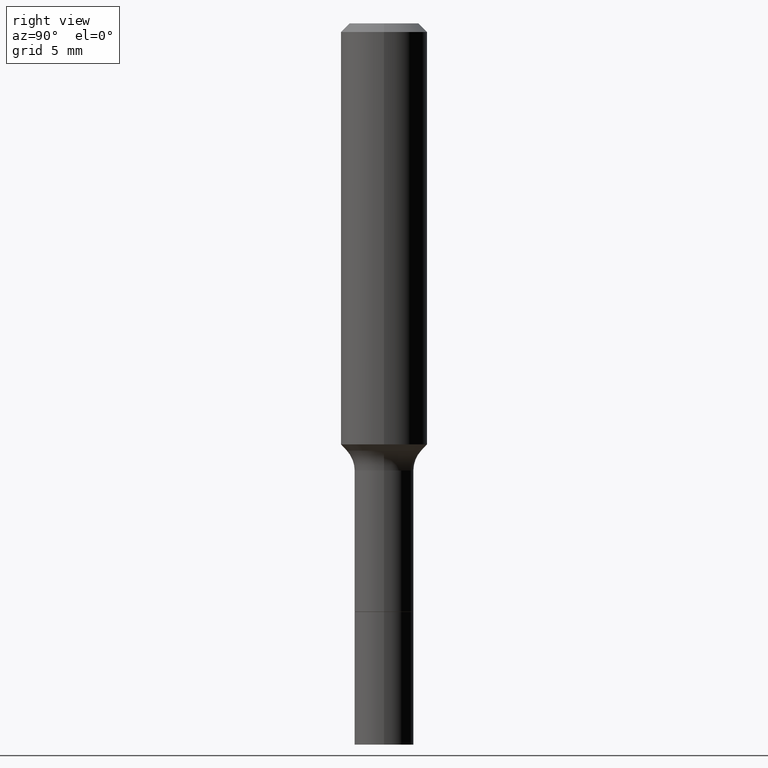
[diagram: clean part render]
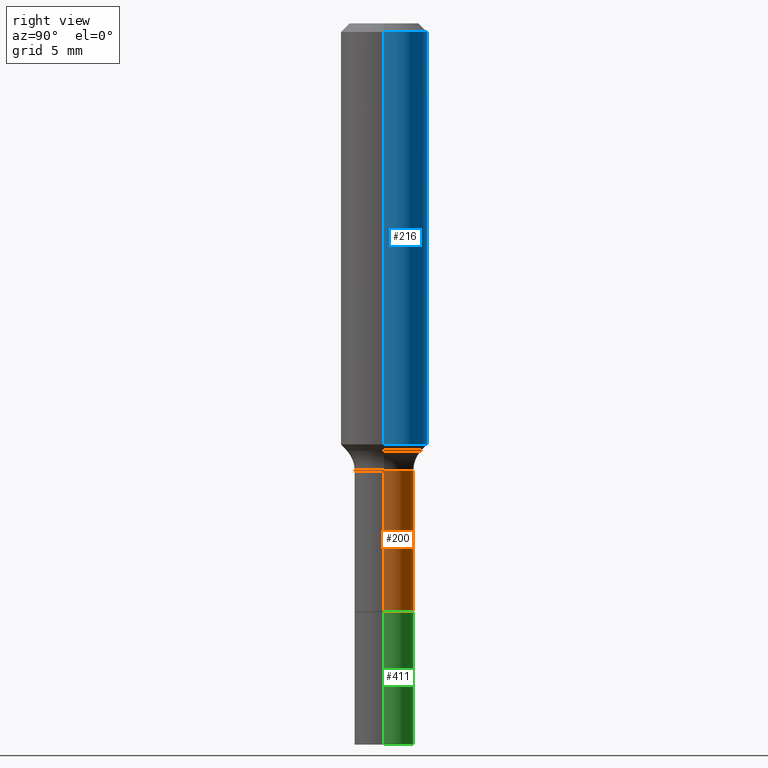
[diagram: same view with three faces highlighted in distinct colors, each labeled with its STEP entity id]
A machine part, right view with three faces highlighted in distinct colors.
Their STEP definitions:

[orange] entity #200 — the highlighted cylindrical surface (edge-blend (fillet) strip) has radius 2.0498 mm, axis along (-0, 0, 1).
#1 = VERTEX_POINT ( 'NONE', #60 ) ;
#11 = EDGE_CURVE ( 'NONE', #90, #1, #235, .T. ) ;
#26 = LINE ( 'NONE', #228, #67 ) ;
#54 = AXIS2_PLACEMENT_3D ( 'NONE', #124, #207, #278 ) ;
#60 = CARTESIAN_POINT ( 'NONE',  ( -0.08069999999999993845, -4.360928014361675851E-15, -1.220499999999999918 ) ) ;
#67 = VECTOR ( 'NONE', #380, 39.37007874015748143 ) ;
#90 = VERTEX_POINT ( 'NONE', #475 ) ;
#97 = DIRECTION ( 'NONE',  ( -2.445468806185136597E-29, 3.491481338843145583E-15, 1.000000000000000000 ) ) ;
#103 = CARTESIAN_POINT ( 'NONE',  ( -0.08069999999999999396, -4.360928014361675851E-15, -1.606000000000000094 ) ) ;
#105 = DIRECTION ( 'NONE',  ( -2.445468806185136877E-29, 3.491481338843145188E-15, 1.000000000000000000 ) ) ;
#124 = CARTESIAN_POINT ( 'NONE',  ( 3.927422902733329482E-29, -5.607319030182091922E-15, -1.606000000000000094 ) ) ;
#128 = VECTOR ( 'NONE', #105, 39.37007874015748143 ) ;
#129 = EDGE_LOOP ( 'NONE', ( #404, #372, #497, #328 ) ) ;
#137 = CARTESIAN_POINT ( 'NONE',  ( 2.984694677948959472E-29, -4.261352974058059028E-15, -1.220499999999999918 ) ) ;
#179 = DIRECTION ( 'NONE',  ( 1.000000000000000000, -6.982962677686265133E-15, 4.876176775795935232E-29 ) ) ;
#200 = ADVANCED_FACE ( 'NONE', ( #247 ), #481, .T. ) ;
#207 = DIRECTION ( 'NONE',  ( -2.445468806185136597E-29, 3.491481338843145583E-15, 1.000000000000000000 ) ) ;
#220 = VERTEX_POINT ( 'NONE', #518 ) ;
#228 = CARTESIAN_POINT ( 'NONE',  ( -0.08069999999999998008, 5.734079877584007085E-16, -3.969580617835708043E-30 ) ) ;
#235 = CIRCLE ( 'NONE', #259, 0.08069999999999993845 ) ;
#247 = FACE_OUTER_BOUND ( 'NONE', #129, .T. ) ;
#258 = DIRECTION ( 'NONE',  ( -2.445468806185136597E-29, 3.491481338843145583E-15, 1.000000000000000000 ) ) ;
#259 = AXIS2_PLACEMENT_3D ( 'NONE', #137, #258, #268 ) ;
#268 = DIRECTION ( 'NONE',  ( 1.000000000000000000, -6.982962677686265133E-15, 0.000000000000000000 ) ) ;
#278 = DIRECTION ( 'NONE',  ( 1.000000000000000000, -6.982962677686260400E-15, 0.000000000000000000 ) ) ;
#283 = CIRCLE ( 'NONE', #54, 0.08069999999999999396 ) ;
#292 = EDGE_CURVE ( 'NONE', #365, #1, #26, .T. ) ;
#315 = AXIS2_PLACEMENT_3D ( 'NONE', #398, #97, #179 ) ;
#328 = ORIENTED_EDGE ( 'NONE', *, *, #366, .F. ) ;
#351 = CARTESIAN_POINT ( 'NONE',  ( 0.08069999999999998008, -5.635250880892814680E-16, 3.935074658067318957E-30 ) ) ;
#365 = VERTEX_POINT ( 'NONE', #103 ) ;
#366 = EDGE_CURVE ( 'NONE', #220, #90, #462, .T. ) ;
#372 = ORIENTED_EDGE ( 'NONE', *, *, #292, .T. ) ;
#380 = DIRECTION ( 'NONE',  ( -2.445468806185136877E-29, 3.491481338843145188E-15, 1.000000000000000000 ) ) ;
#398 = CARTESIAN_POINT ( 'NONE',  ( 0.000000000000000000, 0.000000000000000000, 0.000000000000000000 ) ) ;
#404 = ORIENTED_EDGE ( 'NONE', *, *, #437, .T. ) ;
#437 = EDGE_CURVE ( 'NONE', #220, #365, #283, .T. ) ;
#462 = LINE ( 'NONE', #351, #128 ) ;
#475 = CARTESIAN_POINT ( 'NONE',  ( 0.08069999999999993845, -4.824878062147340101E-15, -1.220499999999999918 ) ) ;
#481 = CYLINDRICAL_SURFACE ( 'NONE', #315, 0.08069999999999998008 ) ;
#497 = ORIENTED_EDGE ( 'NONE', *, *, #11, .F. ) ;
#518 = CARTESIAN_POINT ( 'NONE',  ( 0.08069999999999999396, -6.170844118271372995E-15, -1.606000000000000094 ) ) ;

[blue] entity #216 — the highlighted cylindrical surface (partial cylindrical patch) has radius 2.9997 mm, axis along (-0, 0, 1).
#2 = VECTOR ( 'NONE', #232, 39.37007874015748143 ) ;
#23 = CARTESIAN_POINT ( 'NONE',  ( 0.1181000000000001354, -4.835982970616103918E-15, -1.148880572195881467 ) ) ;
#30 = EDGE_CURVE ( 'NONE', #293, #127, #65, .T. ) ;
#37 = DIRECTION ( 'NONE',  ( -2.445468806185136877E-29, 3.491481338843145188E-15, 1.000000000000000000 ) ) ;
#40 = CARTESIAN_POINT ( 'NONE',  ( -0.1180999999999999966, -1.207730962869736176E-15, -0.02362000000000014435 ) ) ;
#65 = LINE ( 'NONE', #384, #2 ) ;
#83 = CARTESIAN_POINT ( 'NONE',  ( 0.000000000000000000, 0.000000000000000000, 0.000000000000000000 ) ) ;
#86 = DIRECTION ( 'NONE',  ( -2.445468806185136597E-29, 3.491481338843145583E-15, 1.000000000000000000 ) ) ;
#127 = VERTEX_POINT ( 'NONE', #135 ) ;
#135 = CARTESIAN_POINT ( 'NONE',  ( 0.1180999999999999966, -9.071566814582237199E-16, -0.02362000000000014435 ) ) ;
#141 = CARTESIAN_POINT ( 'NONE',  ( 5.776197320209328408E-31, -8.246878922347560526E-17, -0.02362000000000014435 ) ) ;
#161 = EDGE_CURVE ( 'NONE', #293, #447, #206, .T. ) ;
#176 = EDGE_LOOP ( 'NONE', ( #517, #489, #177, #421 ) ) ;
#177 = ORIENTED_EDGE ( 'NONE', *, *, #311, .F. ) ;
#178 = AXIS2_PLACEMENT_3D ( 'NONE', #141, #348, #503 ) ;
#206 = CIRCLE ( 'NONE', #248, 0.1181000000000001354 ) ;
#214 = VECTOR ( 'NONE', #37, 39.37007874015748143 ) ;
#216 = ADVANCED_FACE ( 'NONE', ( #294 ), #440, .T. ) ;
#232 = DIRECTION ( 'NONE',  ( -2.445468806185136877E-29, 3.491481338843145188E-15, 1.000000000000000000 ) ) ;
#241 = CARTESIAN_POINT ( 'NONE',  ( 2.809551601337159132E-29, -4.011295078381354866E-15, -1.148880572195881467 ) ) ;
#244 = DIRECTION ( 'NONE',  ( 1.000000000000000000, -6.982962677686266711E-15, 4.876176775795936353E-29 ) ) ;
#248 = AXIS2_PLACEMENT_3D ( 'NONE', #241, #86, #286 ) ;
#286 = DIRECTION ( 'NONE',  ( 1.000000000000000000, -6.982962677686265133E-15, 0.000000000000000000 ) ) ;
#293 = VERTEX_POINT ( 'NONE', #23 ) ;
#294 = FACE_OUTER_BOUND ( 'NONE', #176, .T. ) ;
#311 = EDGE_CURVE ( 'NONE', #127, #461, #322, .T. ) ;
#318 = CARTESIAN_POINT ( 'NONE',  ( -0.1181000000000000660, 8.391509709326787887E-16, -5.809262341591047287E-30 ) ) ;
#322 = CIRCLE ( 'NONE', #178, 0.1180999999999999966 ) ;
#348 = DIRECTION ( 'NONE',  ( -2.445468806185136597E-29, 3.491481338843145583E-15, 1.000000000000000000 ) ) ;
#367 = DIRECTION ( 'NONE',  ( -2.445468806185136597E-29, 3.491481338843145583E-15, 1.000000000000000000 ) ) ;
#384 = CARTESIAN_POINT ( 'NONE',  ( 0.1181000000000000660, -8.246878922347485584E-16, 5.758764772215003944E-30 ) ) ;
#421 = ORIENTED_EDGE ( 'NONE', *, *, #30, .F. ) ;
#440 = CYLINDRICAL_SURFACE ( 'NONE', #470, 0.1181000000000000660 ) ;
#447 = VERTEX_POINT ( 'NONE', #476 ) ;
#461 = VERTEX_POINT ( 'NONE', #40 ) ;
#470 = AXIS2_PLACEMENT_3D ( 'NONE', #83, #367, #244 ) ;
#476 = CARTESIAN_POINT ( 'NONE',  ( -0.1181000000000001354, -3.172144107448675880E-15, -1.148880572195881467 ) ) ;
#489 = ORIENTED_EDGE ( 'NONE', *, *, #491, .T. ) ;
#491 = EDGE_CURVE ( 'NONE', #447, #461, #516, .T. ) ;
#503 = DIRECTION ( 'NONE',  ( 1.000000000000000000, -6.982962677686266711E-15, 0.000000000000000000 ) ) ;
#516 = LINE ( 'NONE', #318, #214 ) ;
#517 = ORIENTED_EDGE ( 'NONE', *, *, #161, .T. ) ;

[green] entity #411 — the highlighted cylindrical surface (edge-blend (fillet) strip) has radius 2.0498 mm, axis along (-0, 0, 1).
#6 = CIRCLE ( 'NONE', #305, 0.08070000000000010498 ) ;
#14 = VERTEX_POINT ( 'NONE', #344 ) ;
#21 = CARTESIAN_POINT ( 'NONE',  ( 0.08069999999999999396, -6.172589858940796076E-15, -1.606499999999999817 ) ) ;
#51 = DIRECTION ( 'NONE',  ( 1.000000000000000000, -6.982962677686261977E-15, 0.000000000000000000 ) ) ;
#64 = EDGE_CURVE ( 'NONE', #270, #14, #473, .T. ) ;
#102 = VERTEX_POINT ( 'NONE', #21 ) ;
#110 = DIRECTION ( 'NONE',  ( -2.445468806185136597E-29, 3.491481338843145583E-15, 1.000000000000000000 ) ) ;
#121 = AXIS2_PLACEMENT_3D ( 'NONE', #487, #339, #209 ) ;
#134 = VECTOR ( 'NONE', #309, 39.37007874015748143 ) ;
#160 = CARTESIAN_POINT ( 'NONE',  ( 4.813905344975441835E-29, -6.872981015512731707E-15, -1.968500000000000139 ) ) ;
#165 = DIRECTION ( 'NONE',  ( -2.445468806185136597E-29, 3.491481338843145583E-15, 1.000000000000000000 ) ) ;
#167 = EDGE_LOOP ( 'NONE', ( #210, #368, #249, #169 ) ) ;
#169 = ORIENTED_EDGE ( 'NONE', *, *, #477, .F. ) ;
#172 = AXIS2_PLACEMENT_3D ( 'NONE', #385, #110, #388 ) ;
#194 = CARTESIAN_POINT ( 'NONE',  ( 0.08070000000000010498, -7.436506103602013570E-15, -1.968500000000000139 ) ) ;
#196 = CARTESIAN_POINT ( 'NONE',  ( 0.08070000000000004947, -6.172589858940796076E-15, -1.606499999999999817 ) ) ;
#205 = EDGE_CURVE ( 'NONE', #102, #14, #275, .T. ) ;
#209 = DIRECTION ( 'NONE',  ( 1.000000000000000000, -6.982962677686271444E-15, 0.000000000000000000 ) ) ;
#210 = ORIENTED_EDGE ( 'NONE', *, *, #496, .T. ) ;
#245 = DIRECTION ( 'NONE',  ( -2.445468806185136877E-29, 3.491481338843145188E-15, 1.000000000000000000 ) ) ;
#249 = ORIENTED_EDGE ( 'NONE', *, *, #205, .F. ) ;
#270 = VERTEX_POINT ( 'NONE', #300 ) ;
#275 = CIRCLE ( 'NONE', #121, 0.08069999999999999396 ) ;
#290 = VERTEX_POINT ( 'NONE', #194 ) ;
#300 = CARTESIAN_POINT ( 'NONE',  ( -0.08070000000000010498, -5.667614905423721365E-15, -1.968500000000000139 ) ) ;
#305 = AXIS2_PLACEMENT_3D ( 'NONE', #160, #165, #51 ) ;
#309 = DIRECTION ( 'NONE',  ( -2.445468806185136877E-29, 3.491481338843145188E-15, 1.000000000000000000 ) ) ;
#339 = DIRECTION ( 'NONE',  ( -2.445468806185136597E-29, 3.491481338843145583E-15, 1.000000000000000000 ) ) ;
#344 = CARTESIAN_POINT ( 'NONE',  ( -0.08069999999999999396, -5.667614905423722154E-15, -1.606499999999999817 ) ) ;
#353 = CARTESIAN_POINT ( 'NONE',  ( -0.08070000000000004947, -5.035656783093112618E-15, -1.606499999999999817 ) ) ;
#361 = LINE ( 'NONE', #196, #501 ) ;
#368 = ORIENTED_EDGE ( 'NONE', *, *, #64, .T. ) ;
#383 = CYLINDRICAL_SURFACE ( 'NONE', #172, 0.08070000000000004947 ) ;
#385 = CARTESIAN_POINT ( 'NONE',  ( 3.928645637136421723E-29, -5.609064770851513425E-15, -1.606499999999999817 ) ) ;
#388 = DIRECTION ( 'NONE',  ( 1.000000000000000000, -6.982962677686266711E-15, 0.000000000000000000 ) ) ;
#411 = ADVANCED_FACE ( 'NONE', ( #469 ), #383, .T. ) ;
#469 = FACE_OUTER_BOUND ( 'NONE', #167, .T. ) ;
#473 = LINE ( 'NONE', #353, #134 ) ;
#477 = EDGE_CURVE ( 'NONE', #290, #102, #361, .T. ) ;
#487 = CARTESIAN_POINT ( 'NONE',  ( 3.928645637136421723E-29, -5.609064770851513425E-15, -1.606499999999999817 ) ) ;
#496 = EDGE_CURVE ( 'NONE', #290, #270, #6, .T. ) ;
#501 = VECTOR ( 'NONE', #245, 39.37007874015748143 ) ;